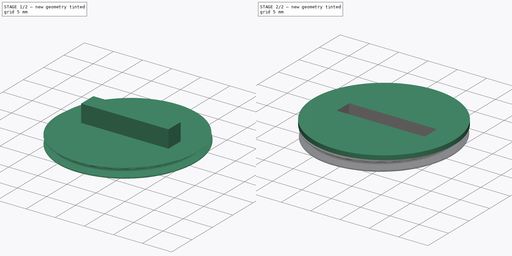
[diagram: build sequence overview — one tinted view per stage of 2, left to right]
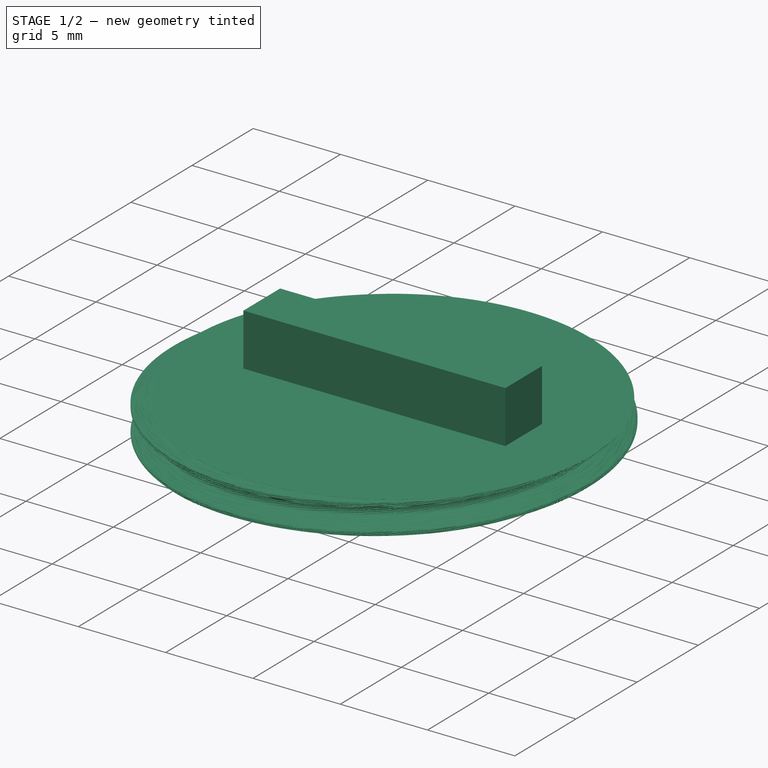
[diagram: stage 1 of 2 — iso view after this stage's code; geometry added in this stage tinted green]
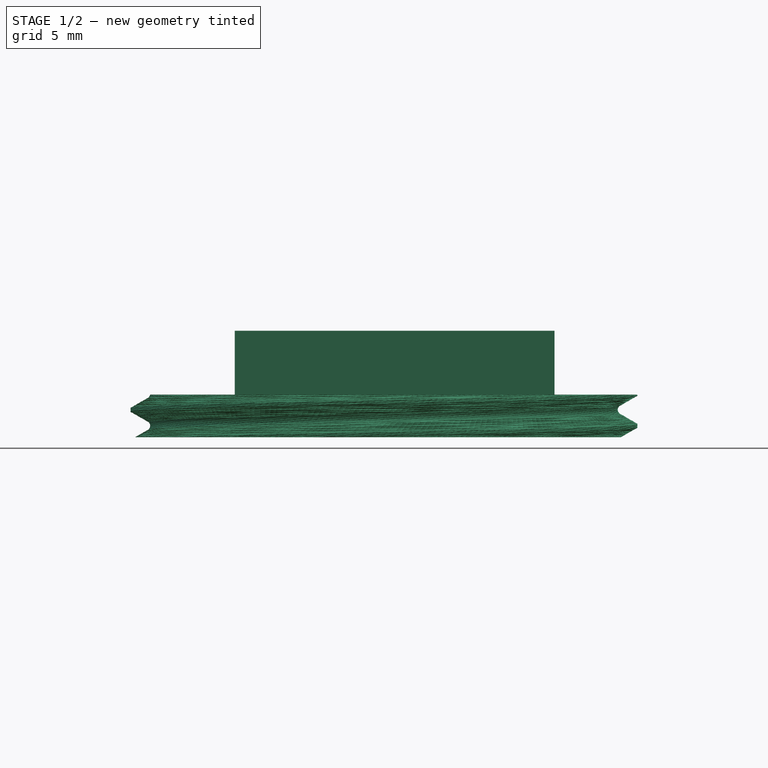
[diagram: stage 1 of 2 — front view after this stage's code; geometry added in this stage tinted green]
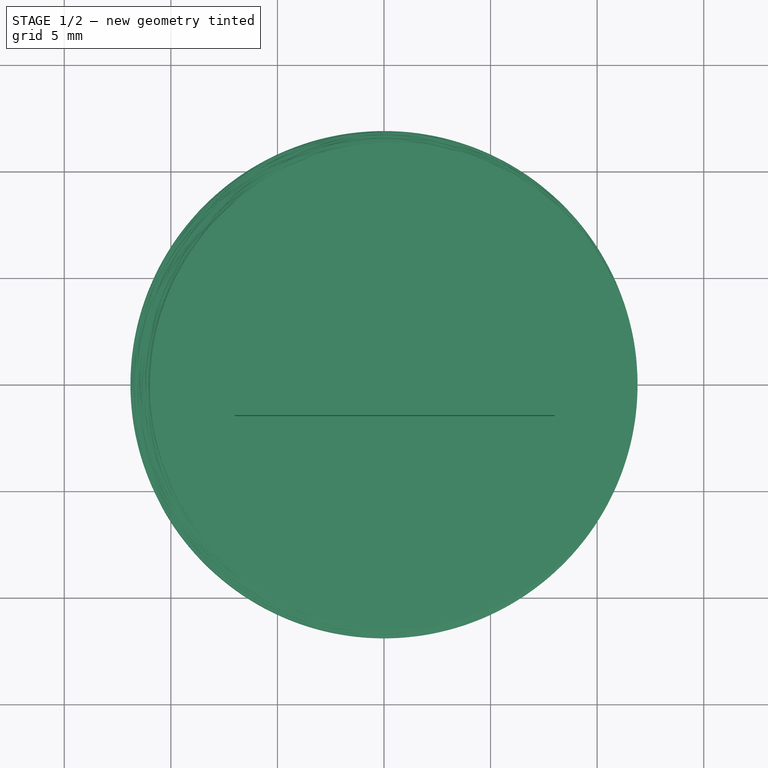
[diagram: stage 1 of 2 — top view after this stage's code; geometry added in this stage tinted green]
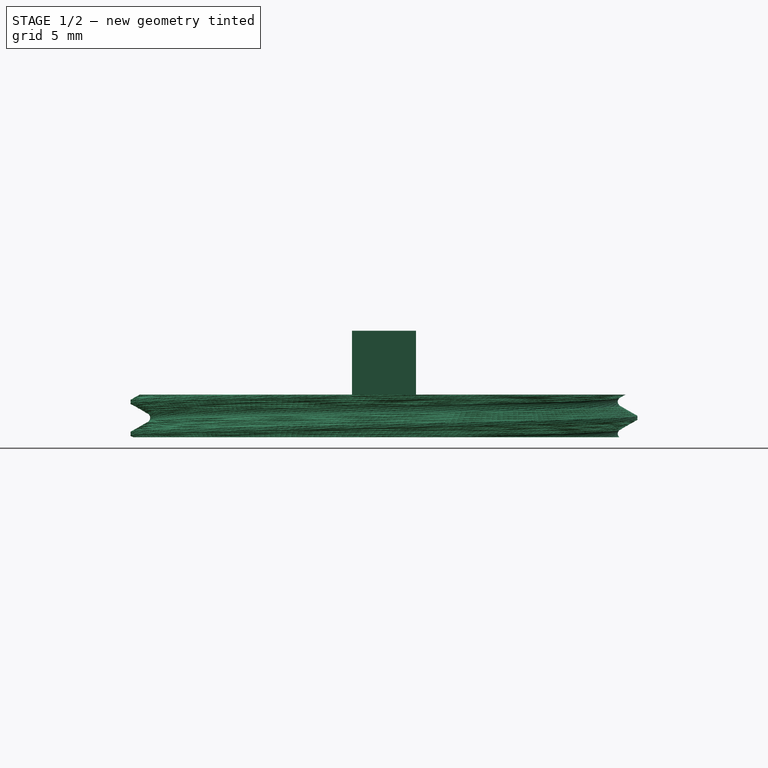
[diagram: stage 1 of 2 — right view after this stage's code; geometry added in this stage tinted green]
FCSTD DOCUMENT  (FreeCAD 0.20R29177 +426 (Git))
Label: battery_door_proto2
License: All rights reserved
LicenseURL: http://en.wikipedia.org/wiki/All_rights_reserved
objects: Part::Part2DObjectPython×1, Part::Helix×1, PartDesign::AdditivePipe×1, Sketcher::SketchObject×1, PartDesign::Pad×1, PartDesign::Body×1, Part::Box×1, Part::Cut×1
note: 10 computed .brp shape members not serialized (recipe doc carries the construction recipe); baked Part::Feature solids carry a one-line shape summary decoded from their .brp

FEATURE [Part::Part2DObjectPython] VThreadProfile  # Draft 2D object (typed FeaturePython)
  Area = 409.801
  Closed = true
  Continuity = C2
  Height = 2
  Helix = Helix
  Instructions = Expand this with the ... button to view instructions | Sweep this object along a helix of the same pitch to produce your thread. | It is recommended to make the helix in the ThreadProfile workbench. | If there is an active Body the ThreadProfile object will be put into it.,If not it can be dragged and dropped into the body later. | If there is an active Body when the helix is made there will be made a ShapeBinder for it | For internal threads you will need to cut the Sweep object out of a cylinder, or if using Part Design sweep it as a Subtractive Pipe. | Always use Frenet mode | I have provided some presets, but it is possible there could be some errors.  Double check for mission critical applications. | Also, the tolerances might be different from what you wish to have.  I believe the internal minor diameters are all minimum and the external are all maximum.
  InternalOrExternal = 1
  MakeFace = true
  MinorDiameter = 22.16
  Parameterization = 1
  Pitch = 1.5
  Points = (66) [(11.0253,1.0631,0),(10.8417,2.11042,0),(10.5676,3.13486,0),(10.2023,4.12832,0),(9.74761,5.08256,0),(9.20688,5.98951,0),(8.58439,6.84144,0),+59 more]
  Presets = 90
  Quality = 11
  ThreadCount = 1.33333
  Variants = 0
  Version = 1.82
  external2S_data = [-0.00461051,-0.00886426,-0.0128148,-0.0165028,-0.0199596,-0.0232105,-0.0262759,-0.0291725,-0.0319145,-0.0345137,-0.0369805,-0.0393235,-0.0415505,-0.0436681,-0.0456823,-0.0475981,-0.0494204,-0.0511532,-0.0528003,-0.0543649,-0.0558502,+698 more]
  external3S_data = [-0.00677828,-0.0128149,-0.0182584,-0.0232106,-0.0277444,-0.0319145,-0.0357632,-0.0393236,-0.0426227,-0.0456823,-0.0485208,-0.0511533,-0.0535928,-0.0558503,-0.0579353,-0.059856,-0.0616195,-0.0632319,-0.0646984,-0.0660239,-0.0672123,+698 more]
  external45_data = [-0.00137363,-0.00271738,-0.00403219,-0.00531893,-0.00657844,-0.00781148,-0.00901878,-0.010201,-0.0113589,-0.012493,-0.0136039,-0.0146921,-0.0157583,-0.0168028,-0.0178261,-0.0188288,-0.0198112,-0.0207738,-0.0217169,-0.0226409,-0.0235462,+698 more]
  external_data = [-0.00235387,-0.00461052,-0.00677828,-0.00886428,-0.0108747,-0.0128149,-0.0146895,-0.0165028,-0.0182584,-0.0199597,-0.0216095,-0.0232106,-0.0247653,-0.0262759,-0.0277444,-0.0291725,-0.0305621,-0.0319145,-0.0332313,-0.0345138,-0.0357632,+698 more]
  internal2S_data = [0,0,0,0,0,0,0,0,0,0,0,0,0,0,0,0,0,0,0,0,0,0,0,0,0,0,0,0,0,0,0,0,0,0,0,0,0,0,0,0,0,0,0,0,0,0,0,0,0,0,0,0,0,0,0,0,0,0,0,0,0,0,0,0,0,0,0,0,0,0,0,0,0,0,0,0,0,0,0,0,0,0,0,0,0,0,0,0,0,0,0.00481128,0.00962256,0.0144338,0.0192451,0.0240564,+624 more]
  internal3S_data = [0,0,0,0,0,0,0,0,0,0,0,0,0,0,0,0,0,0,0,0,0,0,0,0,0,0,0,0,0,0,0,0,0,0,0,0,0,0,0,0,0,0,0,0,0,0,0,0,0,0,0,0,0,0,0,0,0,0,0,0,0.00721688,0.0144338,0.0216506,0.0288675,0.0360844,0.0433013,0.0505181,0.057735,0.0649519,0.0721688,0.0793857,0.0866025,+647 more]
  internal45_data = [0,0,0,0,0,0,0,0,0,0,0,0,0,0,0,0,0,0,0,0,0,0,0,0,0,0,0,0,0,0,0,0,0,0,0,0,0,0,0,0,0,0,0,0,0,0,0,0,0,0,0,0,0,0,0,0,0,0,0,0,0,0,0,0,0,0,0,0,0,0,0,0,0,0,0,0,0,0,0,0,0,0,0,0,0,0,0,0,0,0,0,0,0,0,0,0,0,0,0,0,0,0,0,0,0,0,0,0,0,0,0,0,0,0,0,0,0,0,0,0,+599 more]
  internal_data = [0,0,0,0,0,0,0,0,0,0,0,0,0,0,0,0,0,0,0,0,0,0,0,0,0,0,0,0,0,0,0,0,0,0,0,0,0,0,0,0,0,0,0,0,0,0,0,0,0,0,0,0,0,0,0,0,0,0,0,0,0,0,0,0,0,0,0,0,0,0,0,0,0,0,0,0,0,0,0,0,0,0,0,0,0,0,0,0,0,0,0,0,0,0,0,0,0,0,0,0,0,0,0,0,0,0,0,0,0,0,0,0,0,0,0,0,0,0,0,0,+599 more]
  preset_names = <blob: 3959 chars omitted>
  presets_data = [0,0,0,2.20878,24.1173,24.6888,0.25,0.693,0.729,0.25,0.793,0.829,0.25,0.893,0.929,0.3,1.032,1.075,0.35,1.171,1.221,0.35,1.371,1.421,0.4,1.509,1.567,0.45,1.648,1.713,0.45,1.948,2.013,0.5,2.387,2.459,0.6,2.764,2.85,0.7,3.141,3.242,0.75,3.58,+712 more]
FEATURE [Part::Helix] Helix
  Angle = 0
  AttacherType = Attacher::AttachEngine3D
  Height = 2
  LocalCoord = 0
  Pitch = 1.5
  Radius = 1
  SegmentLength = 0
  Style = 0
  expr: AttachmentOffset = VThreadProfile.AttachmentOffset
  expr: Height = VThreadProfile.ThreadCount * VThreadProfile.Pitch
  expr: MapMode = VThreadProfile.MapMode
  expr: MapPathParameter = VThreadProfile.MapPathParameter
  expr: MapReversed = VThreadProfile.MapReversed
  expr: Pitch = VThreadProfile.Pitch
  expr: Support = VThreadProfile.Support
FEATURE [PartDesign::AdditivePipe] AdditivePipe
  AuxilleryCurvelinear = true
  AuxillerySpineTangent = false
  Binormal = (0,0,0)
  Mode = 2
  Profile = -> VThreadProfile
  Spine = -> Helix
  SpineTangent = false
  Transformation = 0
  Transition = 0
FEATURE [PartDesign::Body] Body
  Group = -> [VThreadProfile,Helix,AdditivePipe,Sketch,Pad]
  Origin = -> Origin
  Tip = -> Pad
FEATURE [Part::Box] Box  label="Cube"
  AttacherType = Attacher::AttachEngine3D
  Height = 4
  Length = 15
  Placement = pos=(-7,-1.5,1) rot=(0,0,1;0rad)
  Width = 3
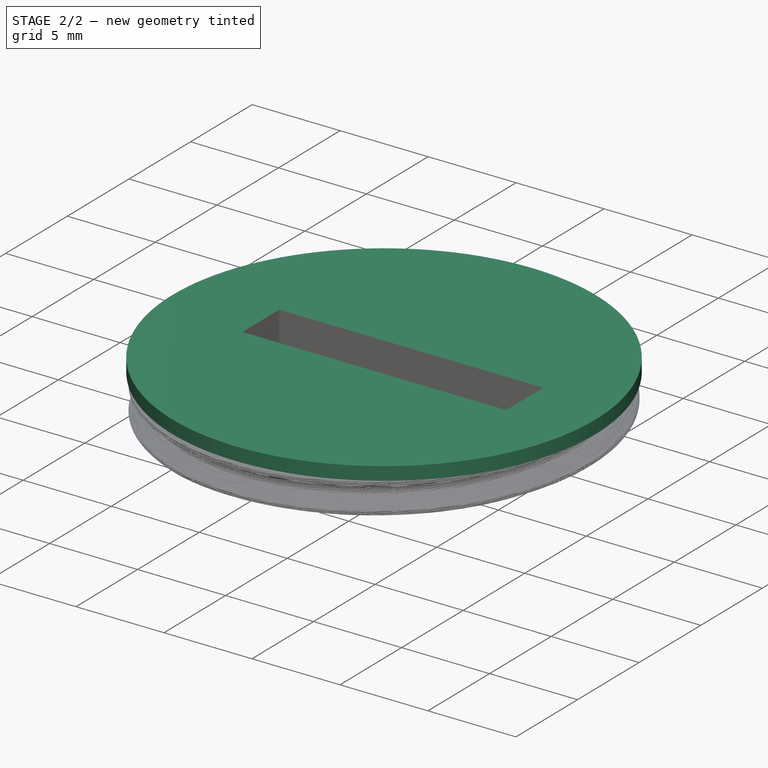
[diagram: stage 2 of 2 — iso view after this stage's code; geometry added in this stage tinted green]
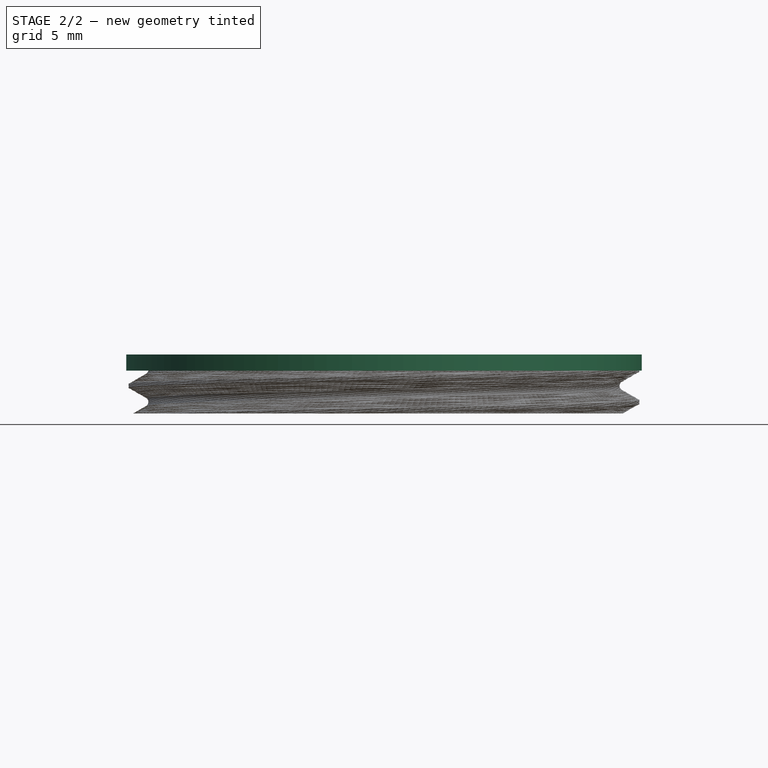
[diagram: stage 2 of 2 — front view after this stage's code; geometry added in this stage tinted green]
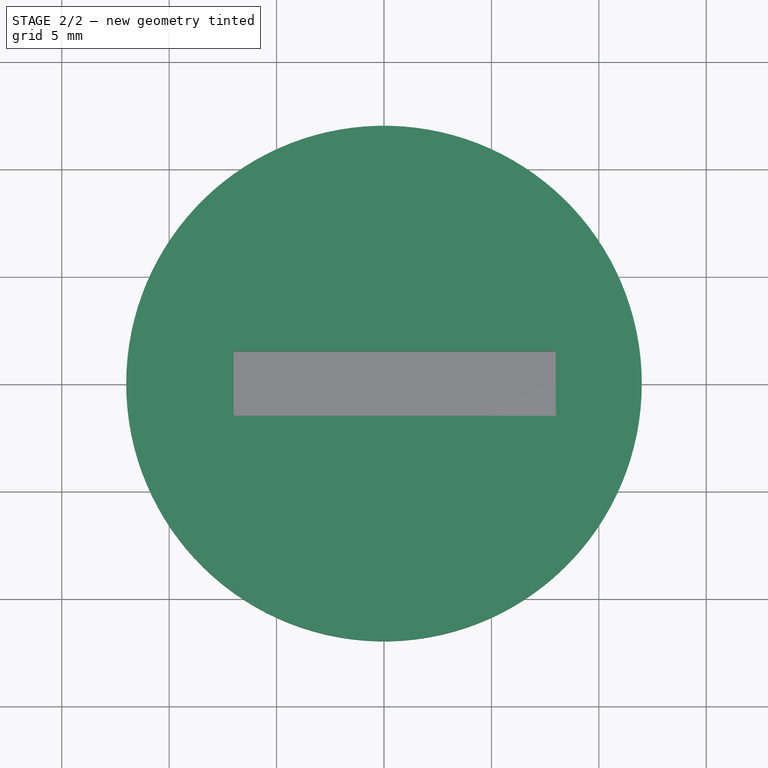
[diagram: stage 2 of 2 — top view after this stage's code; geometry added in this stage tinted green]
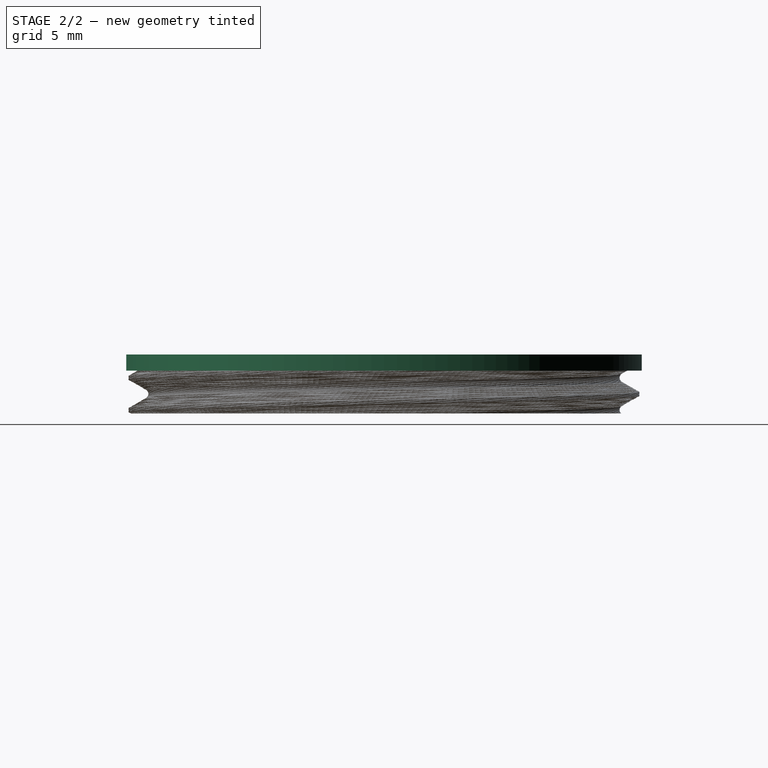
[diagram: stage 2 of 2 — right view after this stage's code; geometry added in this stage tinted green]
FEATURE [Sketcher::SketchObject] Sketch
  FullyConstrained = true
  MapMode = 5
  Placement = pos=(1.7603e-06,-3.04893e-06,2) rot=(0.866026,0.5,0;2e-06rad)
  Support = -> [AdditivePipe]
  sketch-geometry (1):
    g0: Circle CenterX=0 CenterY=0 CenterZ=0 NormalX=0 NormalY=0 NormalZ=1 AngleXU=0 Radius=12
  constraints (2):
    c: Coincident(g0,g-1)
    c: Diameter(g0) = 24
FEATURE [PartDesign::Pad] Pad
  BaseFeature = -> AdditivePipe
  Direction = (8.80151e-07,-1.52447e-06,1)
  Length = 0.75
  Length2 = 10
  Profile = -> Sketch
  ReferenceAxis = -> Sketch [N_Axis]
  Type = 0
FEATURE [Part::Cut] Cut
  Base = -> Pad
  Tool = -> Box
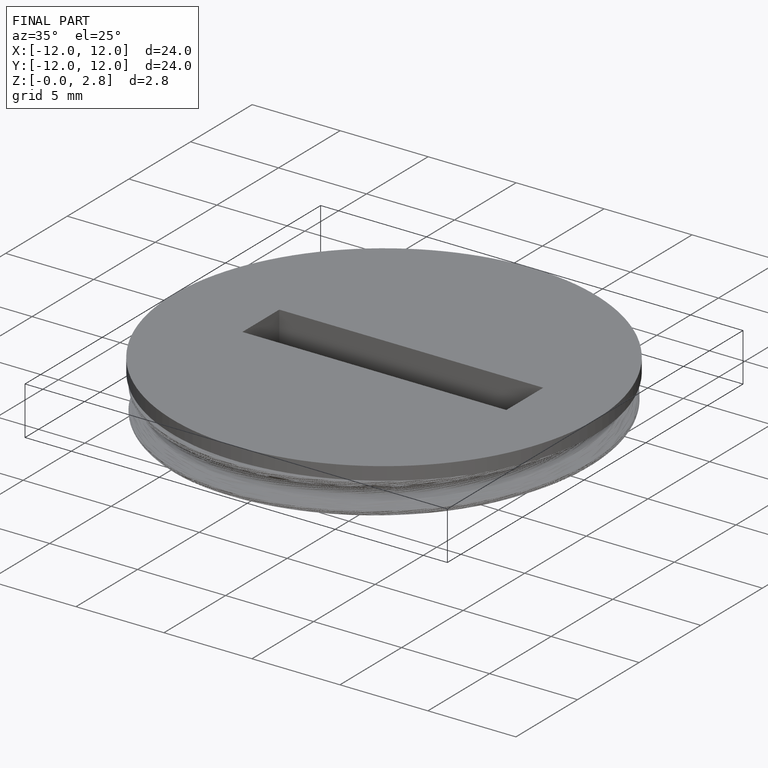
[diagram: finished part — iso view with bounding-box wireframe]
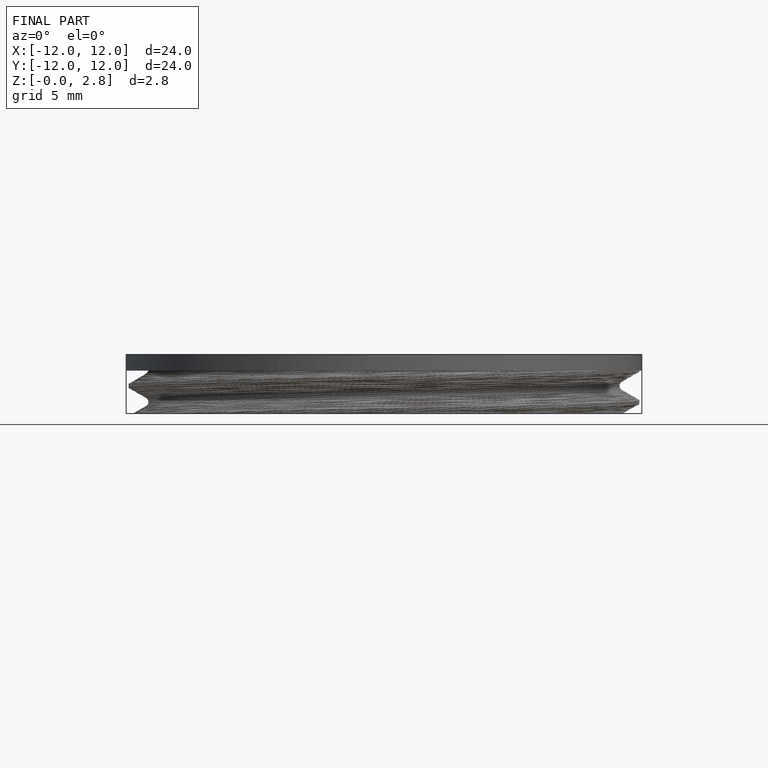
[diagram: finished part — front view with bounding-box wireframe]
